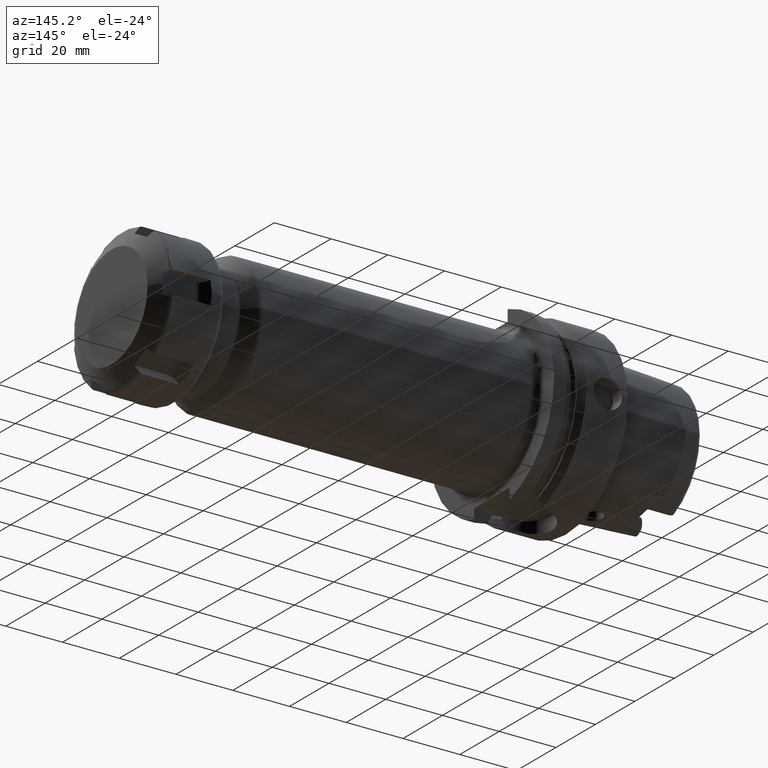
[diagram: clean part render]
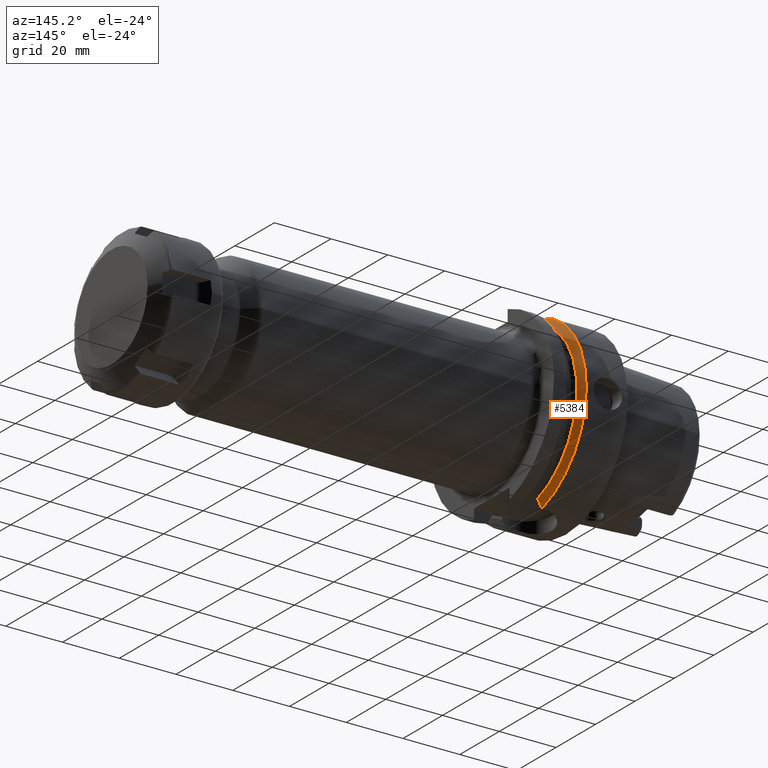
[diagram: same view with one face highlighted and labeled with its STEP entity id]
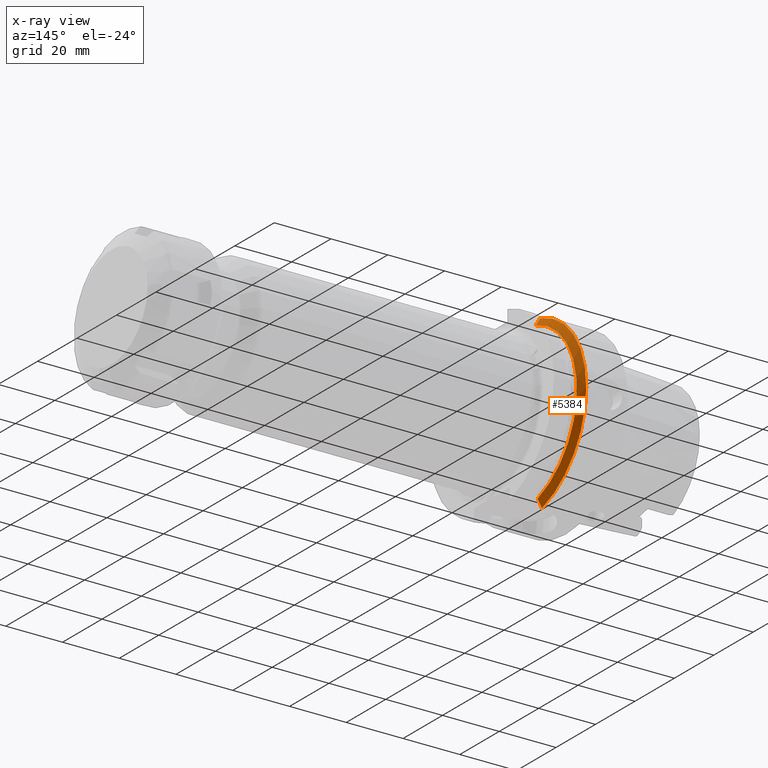
[diagram: x-ray of the same camera — body ghosted, the highlighted face saturated]
A machine part, auxiliary view. The second image highlights one B-rep face of the part: STEP entity #5384.
The next image is the same camera in x-ray: the body ghosted, the highlighted face saturated — about 0% of this face is hidden behind the body in this view.
In plain terms, the highlighted conical surface has half-angle 60 deg.
Its self-contained STEP definition (entity closure, byte-faithful):
#1141=CARTESIAN_POINT('',(1.462250092524E1,0.E0,0.E0));
#1142=DIRECTION('',(1.E0,0.E0,0.E0));
#1143=DIRECTION('',(0.E0,1.E0,0.E0));
#1144=AXIS2_PLACEMENT_3D('',#1141,#1142,#1143);
#1728=CARTESIAN_POINT('',(1.462250092524E1,0.E0,0.E0));
#1729=DIRECTION('',(1.E0,0.E0,0.E0));
#1730=DIRECTION('',(0.E0,2.862698412698E-1,-9.581490374568E-1));
#1731=AXIS2_PLACEMENT_3D('',#1728,#1729,#1730);
#2010=CARTESIAN_POINT('',(1.462250092524E1,9.0175E0,-3.018169467989E1));
#2011=CARTESIAN_POINT('',(1.479739328434E1,9.0175E0,-2.986554088755E1));
#2012=CARTESIAN_POINT('',(1.514187707501E1,9.0175E0,-2.924200119110E1));
#2013=CARTESIAN_POINT('',(1.564249057732E1,9.0175E0,-2.833337204728E1));
#2014=CARTESIAN_POINT('',(1.596590739145E1,9.0175E0,-2.774465116011E1));
#2015=CARTESIAN_POINT('',(1.6125E1,9.0175E0,-2.745461174016E1));
#2017=CARTESIAN_POINT('',(1.6125E1,0.E0,0.E0));
#2018=DIRECTION('',(1.E0,0.E0,0.E0));
#2019=DIRECTION('',(0.E0,3.120501867909E-1,-9.500656192726E-1));
#2020=AXIS2_PLACEMENT_3D('',#2017,#2018,#2019);
#2022=CARTESIAN_POINT('',(1.6125E1,8.0175E0,2.776311772483E1));
#2023=CARTESIAN_POINT('',(1.596543078404E1,8.0175E0,2.805079344433E1));
#2024=CARTESIAN_POINT('',(1.564137691625E1,8.0175E0,2.863431787984E1));
#2025=CARTESIAN_POINT('',(1.514073127837E1,8.0175E0,2.953380309393E1));
#2026=CARTESIAN_POINT('',(1.479690166789E1,8.0175E0,3.015023700722E1));
#2027=CARTESIAN_POINT('',(1.462250092524E1,8.0175E0,3.046259499370E1));
#2960=CARTESIAN_POINT('',(1.462250092524E1,3.15E1,0.E0));
#2961=VERTEX_POINT('',#2960);
#3062=CARTESIAN_POINT('',(1.462250092524E1,8.0175E0,3.046259499370E1));
#3063=VERTEX_POINT('',#3062);
#3068=CARTESIAN_POINT('',(1.6125E1,8.0175E0,2.776311772483E1));
#3070=VERTEX_POINT('',#3068);
#3086=CARTESIAN_POINT('',(1.462250092524E1,9.0175E0,-3.018169467989E1));
#3087=VERTEX_POINT('',#3086);
#3090=CARTESIAN_POINT('',(1.6125E1,9.0175E0,-2.745461174016E1));
#3092=VERTEX_POINT('',#3090);
#5372=CARTESIAN_POINT('',(1.537375046262E1,0.E0,0.E0));
#5373=DIRECTION('',(-1.E0,0.E0,0.E0));
#5374=DIRECTION('',(0.E0,1.E0,0.E0));
#5375=AXIS2_PLACEMENT_3D('',#5372,#5373,#5374);
#5376=CONICAL_SURFACE('',#5375,3.019879763210E1,6.E1);
#5377=ORIENTED_EDGE('',*,*,#4626,.T.);
#5378=ORIENTED_EDGE('',*,*,#5339,.T.);
#5379=ORIENTED_EDGE('',*,*,#5024,.T.);
#5380=ORIENTED_EDGE('',*,*,#4488,.F.);
#5381=ORIENTED_EDGE('',*,*,#4985,.F.);
#5382=EDGE_LOOP('',(#5377,#5378,#5379,#5380,#5381));
#5383=FACE_OUTER_BOUND('',#5382,.F.);
#5384=ADVANCED_FACE('',(#5383),#5376,.T.);
#1145=CIRCLE('',#1144,3.15E1);
#1732=CIRCLE('',#1731,3.15E1);
#2016=B_SPLINE_CURVE_WITH_KNOTS('',3,(#2010,#2011,#2012,#2013,#2014,#2015),
.UNSPECIFIED.,.F.,.F.,(4,1,1,4),(0.E0,3.333333333333E-1,6.666666666667E-1,1.E0),
.UNSPECIFIED.);
#2021=CIRCLE('',#2020,2.889759526419E1);
#2028=B_SPLINE_CURVE_WITH_KNOTS('',3,(#2022,#2023,#2024,#2025,#2026,#2027),
.UNSPECIFIED.,.F.,.F.,(4,1,1,4),(0.E0,3.333333333333E-1,6.666666666667E-1,1.E0),
.UNSPECIFIED.);
#4488=EDGE_CURVE('',#2961,#3063,#1145,.T.);
#4626=EDGE_CURVE('',#3087,#3092,#2016,.T.);
#4985=EDGE_CURVE('',#3087,#2961,#1732,.T.);
#5024=EDGE_CURVE('',#3070,#3063,#2028,.T.);
#5339=EDGE_CURVE('',#3092,#3070,#2021,.T.);